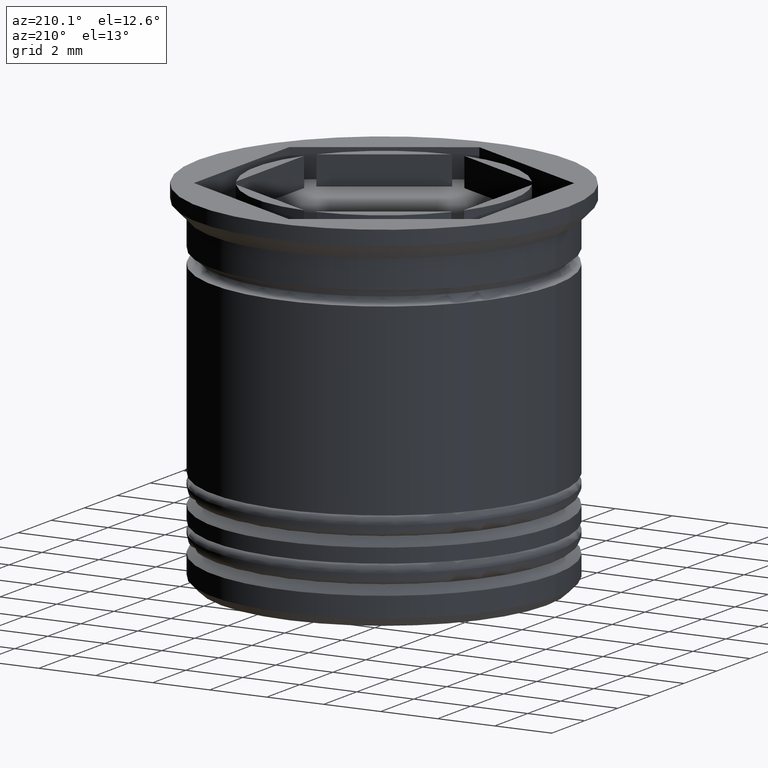
[diagram: clean part render]
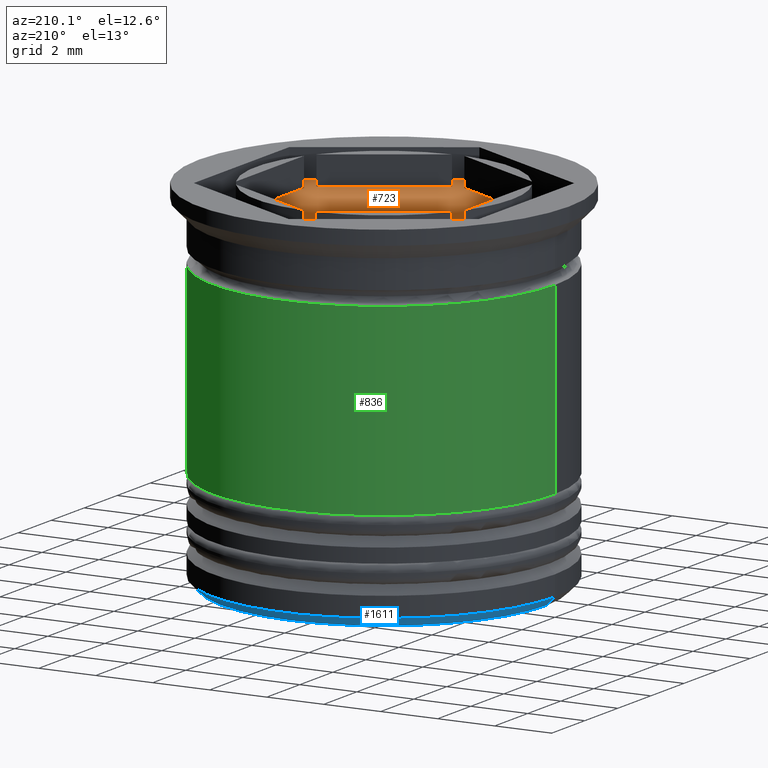
[diagram: same view with three faces highlighted in distinct colors, each labeled with its STEP entity id]
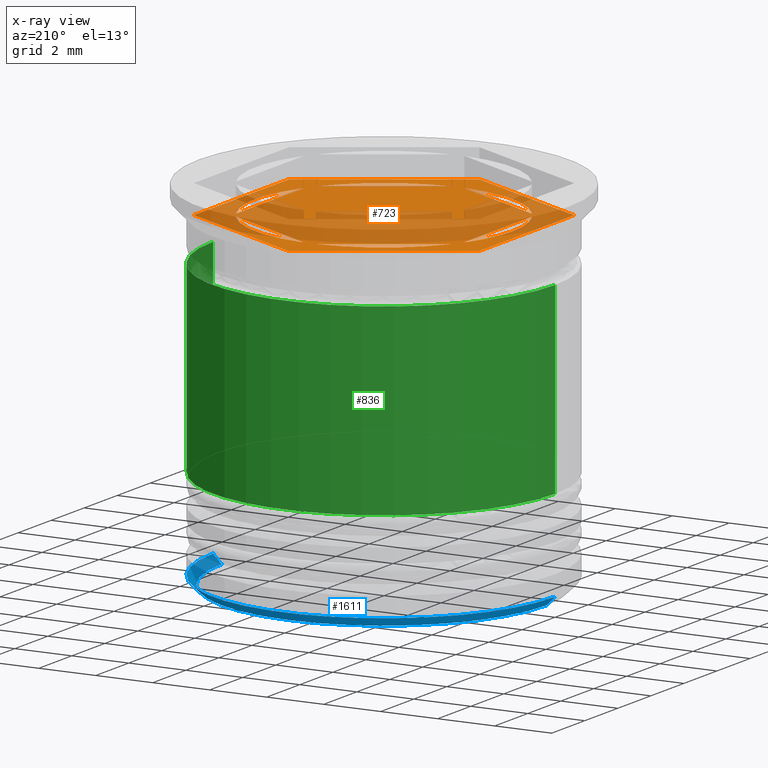
[diagram: x-ray of the same camera — body ghosted, the three highlighted faces saturated]
A machine part, auxiliary view with three faces highlighted in distinct colors.
The next image is the same camera in x-ray (body ghosted, the three faces saturated) — at least one of them is partly hidden behind the body in this view.
Their STEP definitions:

[orange] entity #723 — the highlighted planar face has unit normal (0, 0, 1).
#28 = DIRECTION ( 'NONE',  ( 1.000000000000000000, 0.000000000000000000, 0.000000000000000000 ) ) ;
#31 = CARTESIAN_POINT ( 'NONE',  ( 8.334195073742550113E-16, -5.773502691896256422, -1.000000000000000000 ) ) ;
#35 = VERTEX_POINT ( 'NONE', #1625 ) ;
#38 = AXIS2_PLACEMENT_3D ( 'NONE', #1387, #796, #1091 ) ;
#47 = VERTEX_POINT ( 'NONE', #1966 ) ;
#62 = ORIENTED_EDGE ( 'NONE', *, *, #1229, .T. ) ;
#94 = VERTEX_POINT ( 'NONE', #1741 ) ;
#96 = VERTEX_POINT ( 'NONE', #1558 ) ;
#97 = CARTESIAN_POINT ( 'NONE',  ( 0.000000000000000000, 0.000000000000000000, -1.000000000000000000 ) ) ;
#104 = AXIS2_PLACEMENT_3D ( 'NONE', #868, #737, #298 ) ;
#109 = ORIENTED_EDGE ( 'NONE', *, *, #115, .T. ) ;
#114 = CARTESIAN_POINT ( 'NONE',  ( 0.000000000000000000, 0.000000000000000000, -1.000000000000000000 ) ) ;
#115 = EDGE_CURVE ( 'NONE', #1853, #1551, #629, .T. ) ;
#118 = DIRECTION ( 'NONE',  ( 0.000000000000000000, 0.000000000000000000, 1.000000000000000000 ) ) ;
#130 = DIRECTION ( 'NONE',  ( -0.8660254037844384856, -0.5000000000000002220, 0.000000000000000000 ) ) ;
#155 = CARTESIAN_POINT ( 'NONE',  ( 0.000000000000000000, 5.773502691896257311, -1.000000000000000000 ) ) ;
#184 = LINE ( 'NONE', #801, #1873 ) ;
#207 = CARTESIAN_POINT ( 'NONE',  ( -4.500000000000000888, 0.000000000000000000, -1.000000000000000000 ) ) ;
#226 = CARTESIAN_POINT ( 'NONE',  ( 5.000000000000000888, 2.886751345948129988, -1.000000000000000000 ) ) ;
#241 = DIRECTION ( 'NONE',  ( 0.8660254037844387076, -0.4999999999999998890, 0.000000000000000000 ) ) ;
#250 = EDGE_CURVE ( 'NONE', #1551, #1959, #1435, .T. ) ;
#252 = ORIENTED_EDGE ( 'NONE', *, *, #250, .T. ) ;
#257 = EDGE_LOOP ( 'NONE', ( #1204, #1093 ) ) ;
#258 = DIRECTION ( 'NONE',  ( 0.000000000000000000, 0.000000000000000000, 1.000000000000000000 ) ) ;
#265 = VERTEX_POINT ( 'NONE', #1272 ) ;
#269 = PLANE ( 'NONE',  #1640 ) ;
#278 = CARTESIAN_POINT ( 'NONE',  ( -4.000000000000000000, -2.309401076758503368, -1.000000000000000888 ) ) ;
#286 = FACE_OUTER_BOUND ( 'NONE', #1507, .T. ) ;
#293 = CIRCLE ( 'NONE', #1345, 4.500000000000000888 ) ;
#298 = DIRECTION ( 'NONE',  ( 1.000000000000000000, 0.000000000000000000, 0.000000000000000000 ) ) ;
#301 = EDGE_LOOP ( 'NONE', ( #882, #752 ) ) ;
#350 = CARTESIAN_POINT ( 'NONE',  ( 0.000000000000000000, 0.000000000000000000, -1.000000000000000000 ) ) ;
#360 = VECTOR ( 'NONE', #1286, 1000.000000000000000 ) ;
#395 = VECTOR ( 'NONE', #1838, 1000.000000000000000 ) ;
#409 = ORIENTED_EDGE ( 'NONE', *, *, #559, .F. ) ;
#441 = VERTEX_POINT ( 'NONE', #600 ) ;
#443 = ORIENTED_EDGE ( 'NONE', *, *, #580, .T. ) ;
#451 = DIRECTION ( 'NONE',  ( 1.000000000000000000, 0.000000000000000000, 0.000000000000000000 ) ) ;
#460 = CIRCLE ( 'NONE', #839, 4.500000000000000888 ) ;
#470 = CARTESIAN_POINT ( 'NONE',  ( -3.785357107135713051, 2.433325208733340794, -1.000000000000000888 ) ) ;
#482 = LINE ( 'NONE', #31, #934 ) ;
#510 = DIRECTION ( 'NONE',  ( 1.000000000000000000, 0.000000000000000000, 0.000000000000000000 ) ) ;
#518 = ORIENTED_EDGE ( 'NONE', *, *, #1321, .T. ) ;
#558 = VECTOR ( 'NONE', #130, 1000.000000000000227 ) ;
#559 = EDGE_CURVE ( 'NONE', #441, #1723, #1904, .T. ) ;
#563 = CARTESIAN_POINT ( 'NONE',  ( -4.000000000000000000, 2.309401076758503368, -1.000000000000000888 ) ) ;
#580 = EDGE_CURVE ( 'NONE', #35, #977, #811, .T. ) ;
#589 = CIRCLE ( 'NONE', #1061, 4.500000000000000888 ) ;
#592 = FACE_BOUND ( 'NONE', #1945, .T. ) ;
#599 = DIRECTION ( 'NONE',  ( 0.000000000000000000, 0.000000000000000000, 1.000000000000000000 ) ) ;
#600 = CARTESIAN_POINT ( 'NONE',  ( -0.2146428928642885037, 4.494878021542171531, -1.000000000000000888 ) ) ;
#603 = CARTESIAN_POINT ( 'NONE',  ( 8.334195073742550113E-16, -5.773502691896256422, -1.000000000000000000 ) ) ;
#628 = VERTEX_POINT ( 'NONE', #1462 ) ;
#629 = LINE ( 'NONE', #1224, #643 ) ;
#640 = DIRECTION ( 'NONE',  ( 1.502314598737159278E-16, 1.000000000000000000, 0.000000000000000000 ) ) ;
#642 = VERTEX_POINT ( 'NONE', #1125 ) ;
#643 = VECTOR ( 'NONE', #640, 1000.000000000000000 ) ;
#672 = EDGE_CURVE ( 'NONE', #942, #265, #293, .T. ) ;
#691 = ORIENTED_EDGE ( 'NONE', *, *, #798, .F. ) ;
#692 = CARTESIAN_POINT ( 'NONE',  ( 4.000000000000000000, -2.061552812808832513, -1.000000000000000888 ) ) ;
#696 = EDGE_CURVE ( 'NONE', #1797, #1689, #998, .T. ) ;
#697 = CARTESIAN_POINT ( 'NONE',  ( 5.000000000000000888, 2.886751345948129988, -1.000000000000000000 ) ) ;
#709 = DIRECTION ( 'NONE',  ( 0.000000000000000000, 0.000000000000000000, 1.000000000000000000 ) ) ;
#723 = ADVANCED_FACE ( 'NONE', ( #1752, #971, #1589, #1982, #592, #1963, #286 ), #269, .T. ) ;
#732 = EDGE_CURVE ( 'NONE', #1693, #642, #460, .T. ) ;
#737 = DIRECTION ( 'NONE',  ( 0.000000000000000000, 0.000000000000000000, 1.000000000000000000 ) ) ;
#741 = CARTESIAN_POINT ( 'NONE',  ( 3.785357107135713495, 2.433325208733339906, -1.000000000000000888 ) ) ;
#743 = EDGE_CURVE ( 'NONE', #265, #96, #888, .T. ) ;
#751 = LINE ( 'NONE', #1207, #1836 ) ;
#752 = ORIENTED_EDGE ( 'NONE', *, *, #1962, .F. ) ;
#757 = EDGE_CURVE ( 'NONE', #1075, #628, #997, .T. ) ;
#759 = EDGE_CURVE ( 'NONE', #642, #1693, #1166, .T. ) ;
#796 = DIRECTION ( 'NONE',  ( 0.000000000000000000, 0.000000000000000000, 1.000000000000000000 ) ) ;
#798 = EDGE_CURVE ( 'NONE', #96, #942, #1677, .T. ) ;
#801 = CARTESIAN_POINT ( 'NONE',  ( 0.000000000000000000, 4.618802153517006737, -1.000000000000000888 ) ) ;
#811 = LINE ( 'NONE', #1424, #395 ) ;
#818 = CARTESIAN_POINT ( 'NONE',  ( 5.000000000000000000, -2.886751345948128211, -1.000000000000000000 ) ) ;
#839 = AXIS2_PLACEMENT_3D ( 'NONE', #880, #118, #1644 ) ;
#868 = CARTESIAN_POINT ( 'NONE',  ( 0.000000000000000000, 0.000000000000000000, -1.000000000000000000 ) ) ;
#869 = CIRCLE ( 'NONE', #38, 4.500000000000000888 ) ;
#880 = CARTESIAN_POINT ( 'NONE',  ( 0.000000000000000000, 0.000000000000000000, -1.000000000000000000 ) ) ;
#882 = ORIENTED_EDGE ( 'NONE', *, *, #757, .F. ) ;
#888 = LINE ( 'NONE', #563, #1215 ) ;
#900 = VECTOR ( 'NONE', #1502, 999.9999999999998863 ) ;
#908 = DIRECTION ( 'NONE',  ( 0.000000000000000000, 1.000000000000000000, 0.000000000000000000 ) ) ;
#911 = CARTESIAN_POINT ( 'NONE',  ( -5.000000000000000000, -2.886751345948129543, -1.000000000000000000 ) ) ;
#934 = VECTOR ( 'NONE', #1881, 999.9999999999998863 ) ;
#942 = VERTEX_POINT ( 'NONE', #207 ) ;
#944 = LINE ( 'NONE', #1111, #1907 ) ;
#971 = FACE_BOUND ( 'NONE', #301, .T. ) ;
#977 = VERTEX_POINT ( 'NONE', #1147 ) ;
#997 = CIRCLE ( 'NONE', #1837, 4.500000000000000888 ) ;
#998 = LINE ( 'NONE', #1142, #1711 ) ;
#1005 = EDGE_CURVE ( 'NONE', #1689, #1797, #589, .T. ) ;
#1041 = ORIENTED_EDGE ( 'NONE', *, *, #732, .F. ) ;
#1052 = ORIENTED_EDGE ( 'NONE', *, *, #759, .F. ) ;
#1053 = DIRECTION ( 'NONE',  ( 1.000000000000000000, 0.000000000000000000, -0.000000000000000000 ) ) ;
#1059 = CARTESIAN_POINT ( 'NONE',  ( 0.000000000000000000, 5.773502691896257311, -1.000000000000000000 ) ) ;
#1061 = AXIS2_PLACEMENT_3D ( 'NONE', #114, #709, #1927 ) ;
#1075 = VERTEX_POINT ( 'NONE', #692 ) ;
#1091 = DIRECTION ( 'NONE',  ( 1.000000000000000000, 0.000000000000000000, 0.000000000000000000 ) ) ;
#1093 = ORIENTED_EDGE ( 'NONE', *, *, #1473, .F. ) ;
#1111 = CARTESIAN_POINT ( 'NONE',  ( -4.336808689942017736E-16, -4.618802153517006737, -1.000000000000000888 ) ) ;
#1125 = CARTESIAN_POINT ( 'NONE',  ( -0.2146428928642885037, -4.494878021542171531, -1.000000000000000888 ) ) ;
#1142 = CARTESIAN_POINT ( 'NONE',  ( 4.000000000000000000, 2.309401076758503812, -1.000000000000000888 ) ) ;
#1147 = CARTESIAN_POINT ( 'NONE',  ( -5.000000000000000000, -2.886751345948129543, -1.000000000000000000 ) ) ;
#1166 = LINE ( 'NONE', #278, #900 ) ;
#1184 = EDGE_CURVE ( 'NONE', #1959, #35, #1650, .T. ) ;
#1204 = ORIENTED_EDGE ( 'NONE', *, *, #1814, .F. ) ;
#1207 = CARTESIAN_POINT ( 'NONE',  ( 3.999999999999999112, -2.309401076758504257, -1.000000000000000888 ) ) ;
#1215 = VECTOR ( 'NONE', #908, 1000.000000000000000 ) ;
#1224 = CARTESIAN_POINT ( 'NONE',  ( 5.000000000000000000, -2.886751345948128211, -1.000000000000000000 ) ) ;
#1227 = VERTEX_POINT ( 'NONE', #603 ) ;
#1229 = EDGE_CURVE ( 'NONE', #977, #1227, #1829, .T. ) ;
#1250 = CARTESIAN_POINT ( 'NONE',  ( 0.2146428928642856726, 4.494878021542170643, -1.000000000000000888 ) ) ;
#1272 = CARTESIAN_POINT ( 'NONE',  ( -4.000000000000000000, -2.061552812808831625, -1.000000000000000888 ) ) ;
#1284 = EDGE_CURVE ( 'NONE', #1723, #441, #184, .T. ) ;
#1286 = DIRECTION ( 'NONE',  ( -0.8660254037844388186, 0.4999999999999997224, 0.000000000000000000 ) ) ;
#1302 = DIRECTION ( 'NONE',  ( 0.000000000000000000, 0.000000000000000000, 1.000000000000000000 ) ) ;
#1321 = EDGE_CURVE ( 'NONE', #1227, #1853, #482, .T. ) ;
#1345 = AXIS2_PLACEMENT_3D ( 'NONE', #1433, #1302, #510 ) ;
#1373 = CARTESIAN_POINT ( 'NONE',  ( -3.785357107135713051, -2.433325208733340794, -1.000000000000000888 ) ) ;
#1387 = CARTESIAN_POINT ( 'NONE',  ( 0.000000000000000000, 0.000000000000000000, -1.000000000000000000 ) ) ;
#1424 = CARTESIAN_POINT ( 'NONE',  ( -4.999999999999999112, 2.886751345948126879, -1.000000000000000000 ) ) ;
#1433 = CARTESIAN_POINT ( 'NONE',  ( 0.000000000000000000, 0.000000000000000000, -1.000000000000000000 ) ) ;
#1435 = LINE ( 'NONE', #697, #360 ) ;
#1462 = CARTESIAN_POINT ( 'NONE',  ( 4.000000000000000000, 2.061552812808830737, -1.000000000000000888 ) ) ;
#1473 = EDGE_CURVE ( 'NONE', #47, #94, #944, .T. ) ;
#1502 = DIRECTION ( 'NONE',  ( -0.8660254037844387076, 0.5000000000000001110, 0.000000000000000000 ) ) ;
#1507 = EDGE_LOOP ( 'NONE', ( #252, #1901, #443, #62, #518, #109 ) ) ;
#1526 = DIRECTION ( 'NONE',  ( 0.8660254037844388186, -0.4999999999999996114, 0.000000000000000000 ) ) ;
#1542 = AXIS2_PLACEMENT_3D ( 'NONE', #350, #1564, #28 ) ;
#1551 = VERTEX_POINT ( 'NONE', #226 ) ;
#1556 = DIRECTION ( 'NONE',  ( -0.8660254037844387076, -0.4999999999999998335, 0.000000000000000000 ) ) ;
#1558 = CARTESIAN_POINT ( 'NONE',  ( -4.000000000000000000, 2.061552812808831625, -1.000000000000000888 ) ) ;
#1564 = DIRECTION ( 'NONE',  ( 0.000000000000000000, 0.000000000000000000, 1.000000000000000000 ) ) ;
#1581 = DIRECTION ( 'NONE',  ( 0.8660254037844387076, 0.5000000000000001110, -0.000000000000000000 ) ) ;
#1589 = FACE_BOUND ( 'NONE', #257, .T. ) ;
#1616 = EDGE_LOOP ( 'NONE', ( #1774, #1756 ) ) ;
#1625 = CARTESIAN_POINT ( 'NONE',  ( -4.999999999999999112, 2.886751345948126879, -1.000000000000000000 ) ) ;
#1640 = AXIS2_PLACEMENT_3D ( 'NONE', #1828, #258, #1053 ) ;
#1644 = DIRECTION ( 'NONE',  ( 1.000000000000000000, 0.000000000000000000, 0.000000000000000000 ) ) ;
#1650 = LINE ( 'NONE', #1059, #558 ) ;
#1667 = ORIENTED_EDGE ( 'NONE', *, *, #1284, .F. ) ;
#1677 = CIRCLE ( 'NONE', #104, 4.500000000000000888 ) ;
#1689 = VERTEX_POINT ( 'NONE', #741 ) ;
#1693 = VERTEX_POINT ( 'NONE', #1373 ) ;
#1711 = VECTOR ( 'NONE', #241, 1000.000000000000114 ) ;
#1723 = VERTEX_POINT ( 'NONE', #470 ) ;
#1741 = CARTESIAN_POINT ( 'NONE',  ( 0.2146428928642876155, -4.494878021542170643, -1.000000000000000888 ) ) ;
#1752 = FACE_BOUND ( 'NONE', #1616, .T. ) ;
#1756 = ORIENTED_EDGE ( 'NONE', *, *, #696, .F. ) ;
#1774 = ORIENTED_EDGE ( 'NONE', *, *, #1005, .F. ) ;
#1788 = EDGE_LOOP ( 'NONE', ( #1041, #1052 ) ) ;
#1797 = VERTEX_POINT ( 'NONE', #1250 ) ;
#1812 = VECTOR ( 'NONE', #1526, 1000.000000000000000 ) ;
#1814 = EDGE_CURVE ( 'NONE', #94, #47, #869, .T. ) ;
#1828 = CARTESIAN_POINT ( 'NONE',  ( 0.000000000000000000, 0.000000000000000000, -1.000000000000000000 ) ) ;
#1829 = LINE ( 'NONE', #911, #1812 ) ;
#1830 = DIRECTION ( 'NONE',  ( -1.877893248421448296E-16, -1.000000000000000000, 0.000000000000000000 ) ) ;
#1836 = VECTOR ( 'NONE', #1830, 1000.000000000000000 ) ;
#1837 = AXIS2_PLACEMENT_3D ( 'NONE', #97, #599, #451 ) ;
#1838 = DIRECTION ( 'NONE',  ( -1.502314598737159771E-16, -1.000000000000000000, 0.000000000000000000 ) ) ;
#1853 = VERTEX_POINT ( 'NONE', #818 ) ;
#1855 = ORIENTED_EDGE ( 'NONE', *, *, #672, .F. ) ;
#1858 = ORIENTED_EDGE ( 'NONE', *, *, #743, .F. ) ;
#1873 = VECTOR ( 'NONE', #1581, 999.9999999999998863 ) ;
#1881 = DIRECTION ( 'NONE',  ( 0.8660254037844387076, 0.4999999999999999445, 0.000000000000000000 ) ) ;
#1901 = ORIENTED_EDGE ( 'NONE', *, *, #1184, .T. ) ;
#1904 = CIRCLE ( 'NONE', #1542, 4.500000000000000888 ) ;
#1907 = VECTOR ( 'NONE', #1556, 1000.000000000000114 ) ;
#1927 = DIRECTION ( 'NONE',  ( 1.000000000000000000, 0.000000000000000000, 0.000000000000000000 ) ) ;
#1945 = EDGE_LOOP ( 'NONE', ( #691, #1858, #1855 ) ) ;
#1959 = VERTEX_POINT ( 'NONE', #155 ) ;
#1962 = EDGE_CURVE ( 'NONE', #628, #1075, #751, .T. ) ;
#1963 = FACE_BOUND ( 'NONE', #1985, .T. ) ;
#1966 = CARTESIAN_POINT ( 'NONE',  ( 3.785357107135712162, -2.433325208733341238, -1.000000000000000888 ) ) ;
#1982 = FACE_BOUND ( 'NONE', #1788, .T. ) ;
#1985 = EDGE_LOOP ( 'NONE', ( #409, #1667 ) ) ;

[blue] entity #1611 — the highlighted conical surface has half-angle 45 deg.
#54 = VERTEX_POINT ( 'NONE', #454 ) ;
#101 = VECTOR ( 'NONE', #405, 999.9999999999998863 ) ;
#107 = CIRCLE ( 'NONE', #550, 6.000000000000001776 ) ;
#217 = DIRECTION ( 'NONE',  ( 0.7071067811865486830, 0.000000000000000000, 0.7071067811865464625 ) ) ;
#237 = CIRCLE ( 'NONE', #753, 5.699999999999995737 ) ;
#256 = FACE_OUTER_BOUND ( 'NONE', #1698, .T. ) ;
#309 = EDGE_CURVE ( 'NONE', #946, #1671, #1442, .T. ) ;
#405 = DIRECTION ( 'NONE',  ( -0.7071067811865486830, 8.659560562354945184E-17, 0.7071067811865464625 ) ) ;
#454 = CARTESIAN_POINT ( 'NONE',  ( 6.000000000000001776, 0.000000000000000000, -12.19999999999999574 ) ) ;
#456 = CONICAL_SURFACE ( 'NONE', #1639, 6.000000000000001776, 0.7853981633974497223 ) ;
#515 = LINE ( 'NONE', #1118, #933 ) ;
#550 = AXIS2_PLACEMENT_3D ( 'NONE', #1312, #982, #1301 ) ;
#658 = DIRECTION ( 'NONE',  ( 0.000000000000000000, 0.000000000000000000, -1.000000000000000000 ) ) ;
#677 = CARTESIAN_POINT ( 'NONE',  ( 0.000000000000000000, 0.000000000000000000, -12.50000000000000000 ) ) ;
#711 = ORIENTED_EDGE ( 'NONE', *, *, #949, .F. ) ;
#753 = AXIS2_PLACEMENT_3D ( 'NONE', #677, #658, #1436 ) ;
#866 = DIRECTION ( 'NONE',  ( -0.000000000000000000, -0.000000000000000000, 1.000000000000000000 ) ) ;
#878 = CARTESIAN_POINT ( 'NONE',  ( 0.000000000000000000, 0.000000000000000000, -12.19999999999999574 ) ) ;
#933 = VECTOR ( 'NONE', #217, 999.9999999999998863 ) ;
#946 = VERTEX_POINT ( 'NONE', #1894 ) ;
#949 = EDGE_CURVE ( 'NONE', #1521, #54, #515, .T. ) ;
#982 = DIRECTION ( 'NONE',  ( -0.000000000000000000, -0.000000000000000000, 1.000000000000000000 ) ) ;
#1070 = ORIENTED_EDGE ( 'NONE', *, *, #309, .T. ) ;
#1081 = ORIENTED_EDGE ( 'NONE', *, *, #1307, .F. ) ;
#1118 = CARTESIAN_POINT ( 'NONE',  ( 6.000000000000001776, 0.000000000000000000, -12.19999999999999574 ) ) ;
#1301 = DIRECTION ( 'NONE',  ( -1.000000000000000000, 0.000000000000000000, 0.000000000000000000 ) ) ;
#1307 = EDGE_CURVE ( 'NONE', #946, #1521, #237, .T. ) ;
#1312 = CARTESIAN_POINT ( 'NONE',  ( 0.000000000000000000, 0.000000000000000000, -12.19999999999999574 ) ) ;
#1418 = ORIENTED_EDGE ( 'NONE', *, *, #1534, .F. ) ;
#1436 = DIRECTION ( 'NONE',  ( -1.000000000000000000, 0.000000000000000000, 0.000000000000000000 ) ) ;
#1442 = LINE ( 'NONE', #1913, #101 ) ;
#1481 = DIRECTION ( 'NONE',  ( 1.000000000000000000, 0.000000000000000000, 0.000000000000000000 ) ) ;
#1521 = VERTEX_POINT ( 'NONE', #1621 ) ;
#1534 = EDGE_CURVE ( 'NONE', #54, #1671, #107, .T. ) ;
#1611 = ADVANCED_FACE ( 'NONE', ( #256 ), #456, .T. ) ;
#1621 = CARTESIAN_POINT ( 'NONE',  ( 5.699999999999995737, 0.000000000000000000, -12.50000000000000000 ) ) ;
#1639 = AXIS2_PLACEMENT_3D ( 'NONE', #878, #866, #1481 ) ;
#1671 = VERTEX_POINT ( 'NONE', #1684 ) ;
#1684 = CARTESIAN_POINT ( 'NONE',  ( -6.000000000000001776, 7.347880794884121708E-16, -12.19999999999999574 ) ) ;
#1698 = EDGE_LOOP ( 'NONE', ( #1081, #1070, #1418, #711 ) ) ;
#1894 = CARTESIAN_POINT ( 'NONE',  ( -5.699999999999995737, 7.164183775012013464E-16, -12.50000000000000000 ) ) ;
#1913 = CARTESIAN_POINT ( 'NONE',  ( -6.000000000000001776, 7.347880794884120722E-16, -12.19999999999999574 ) ) ;

[green] entity #836 — the highlighted cylindrical surface (partial cylindrical patch) has radius 6 mm, axis along (-0, -0, 1).
#159 = DIRECTION ( 'NONE',  ( -0.000000000000000000, -0.000000000000000000, 1.000000000000000000 ) ) ;
#255 = VERTEX_POINT ( 'NONE', #1456 ) ;
#264 = AXIS2_PLACEMENT_3D ( 'NONE', #804, #159, #1211 ) ;
#270 = CARTESIAN_POINT ( 'NONE',  ( 6.000000000000000000, 0.000000000000000000, 0.000000000000000000 ) ) ;
#342 = ORIENTED_EDGE ( 'NONE', *, *, #422, .F. ) ;
#388 = DIRECTION ( 'NONE',  ( 1.000000000000000000, 0.000000000000000000, 0.000000000000000000 ) ) ;
#422 = EDGE_CURVE ( 'NONE', #1388, #255, #1977, .T. ) ;
#461 = CIRCLE ( 'NONE', #778, 6.000000000000001776 ) ;
#607 = DIRECTION ( 'NONE',  ( -0.000000000000000000, -0.000000000000000000, 1.000000000000000000 ) ) ;
#652 = CARTESIAN_POINT ( 'NONE',  ( 6.000000000000001776, 0.000000000000000000, -9.000000000000001776 ) ) ;
#778 = AXIS2_PLACEMENT_3D ( 'NONE', #1308, #1490, #1467 ) ;
#795 = FACE_OUTER_BOUND ( 'NONE', #1022, .T. ) ;
#804 = CARTESIAN_POINT ( 'NONE',  ( 0.000000000000000000, 0.000000000000000000, 0.000000000000000000 ) ) ;
#819 = CARTESIAN_POINT ( 'NONE',  ( -6.000000000000001776, 7.347880794884121708E-16, -9.000000000000001776 ) ) ;
#836 = ADVANCED_FACE ( 'NONE', ( #795 ), #1522, .T. ) ;
#870 = VECTOR ( 'NONE', #881, 1000.000000000000000 ) ;
#873 = ORIENTED_EDGE ( 'NONE', *, *, #1085, .F. ) ;
#881 = DIRECTION ( 'NONE',  ( -0.000000000000000000, -0.000000000000000000, 1.000000000000000000 ) ) ;
#974 = EDGE_CURVE ( 'NONE', #1388, #1498, #461, .T. ) ;
#980 = CARTESIAN_POINT ( 'NONE',  ( 0.000000000000000000, 0.000000000000000000, -2.500000000000000000 ) ) ;
#1022 = EDGE_LOOP ( 'NONE', ( #1465, #1072, #873, #342 ) ) ;
#1065 = LINE ( 'NONE', #1670, #1903 ) ;
#1072 = ORIENTED_EDGE ( 'NONE', *, *, #1697, .T. ) ;
#1085 = EDGE_CURVE ( 'NONE', #255, #1878, #1217, .T. ) ;
#1149 = CARTESIAN_POINT ( 'NONE',  ( -5.999999999999999112, 7.347880794884118750E-16, -2.500000000000000000 ) ) ;
#1211 = DIRECTION ( 'NONE',  ( 1.000000000000000000, 0.000000000000000000, 0.000000000000000000 ) ) ;
#1217 = CIRCLE ( 'NONE', #1714, 5.999999999999999112 ) ;
#1308 = CARTESIAN_POINT ( 'NONE',  ( 0.000000000000000000, 0.000000000000000000, -9.000000000000001776 ) ) ;
#1388 = VERTEX_POINT ( 'NONE', #652 ) ;
#1456 = CARTESIAN_POINT ( 'NONE',  ( 5.999999999999999112, 0.000000000000000000, -2.500000000000000000 ) ) ;
#1465 = ORIENTED_EDGE ( 'NONE', *, *, #974, .T. ) ;
#1467 = DIRECTION ( 'NONE',  ( 1.000000000000000000, 0.000000000000000000, 0.000000000000000000 ) ) ;
#1490 = DIRECTION ( 'NONE',  ( -0.000000000000000000, -0.000000000000000000, 1.000000000000000000 ) ) ;
#1498 = VERTEX_POINT ( 'NONE', #819 ) ;
#1522 = CYLINDRICAL_SURFACE ( 'NONE', #264, 6.000000000000000000 ) ;
#1670 = CARTESIAN_POINT ( 'NONE',  ( -6.000000000000000000, 7.347880794884119736E-16, 0.000000000000000000 ) ) ;
#1697 = EDGE_CURVE ( 'NONE', #1498, #1878, #1065, .T. ) ;
#1714 = AXIS2_PLACEMENT_3D ( 'NONE', #980, #1766, #388 ) ;
#1766 = DIRECTION ( 'NONE',  ( -0.000000000000000000, -0.000000000000000000, 1.000000000000000000 ) ) ;
#1878 = VERTEX_POINT ( 'NONE', #1149 ) ;
#1903 = VECTOR ( 'NONE', #607, 1000.000000000000000 ) ;
#1977 = LINE ( 'NONE', #270, #870 ) ;